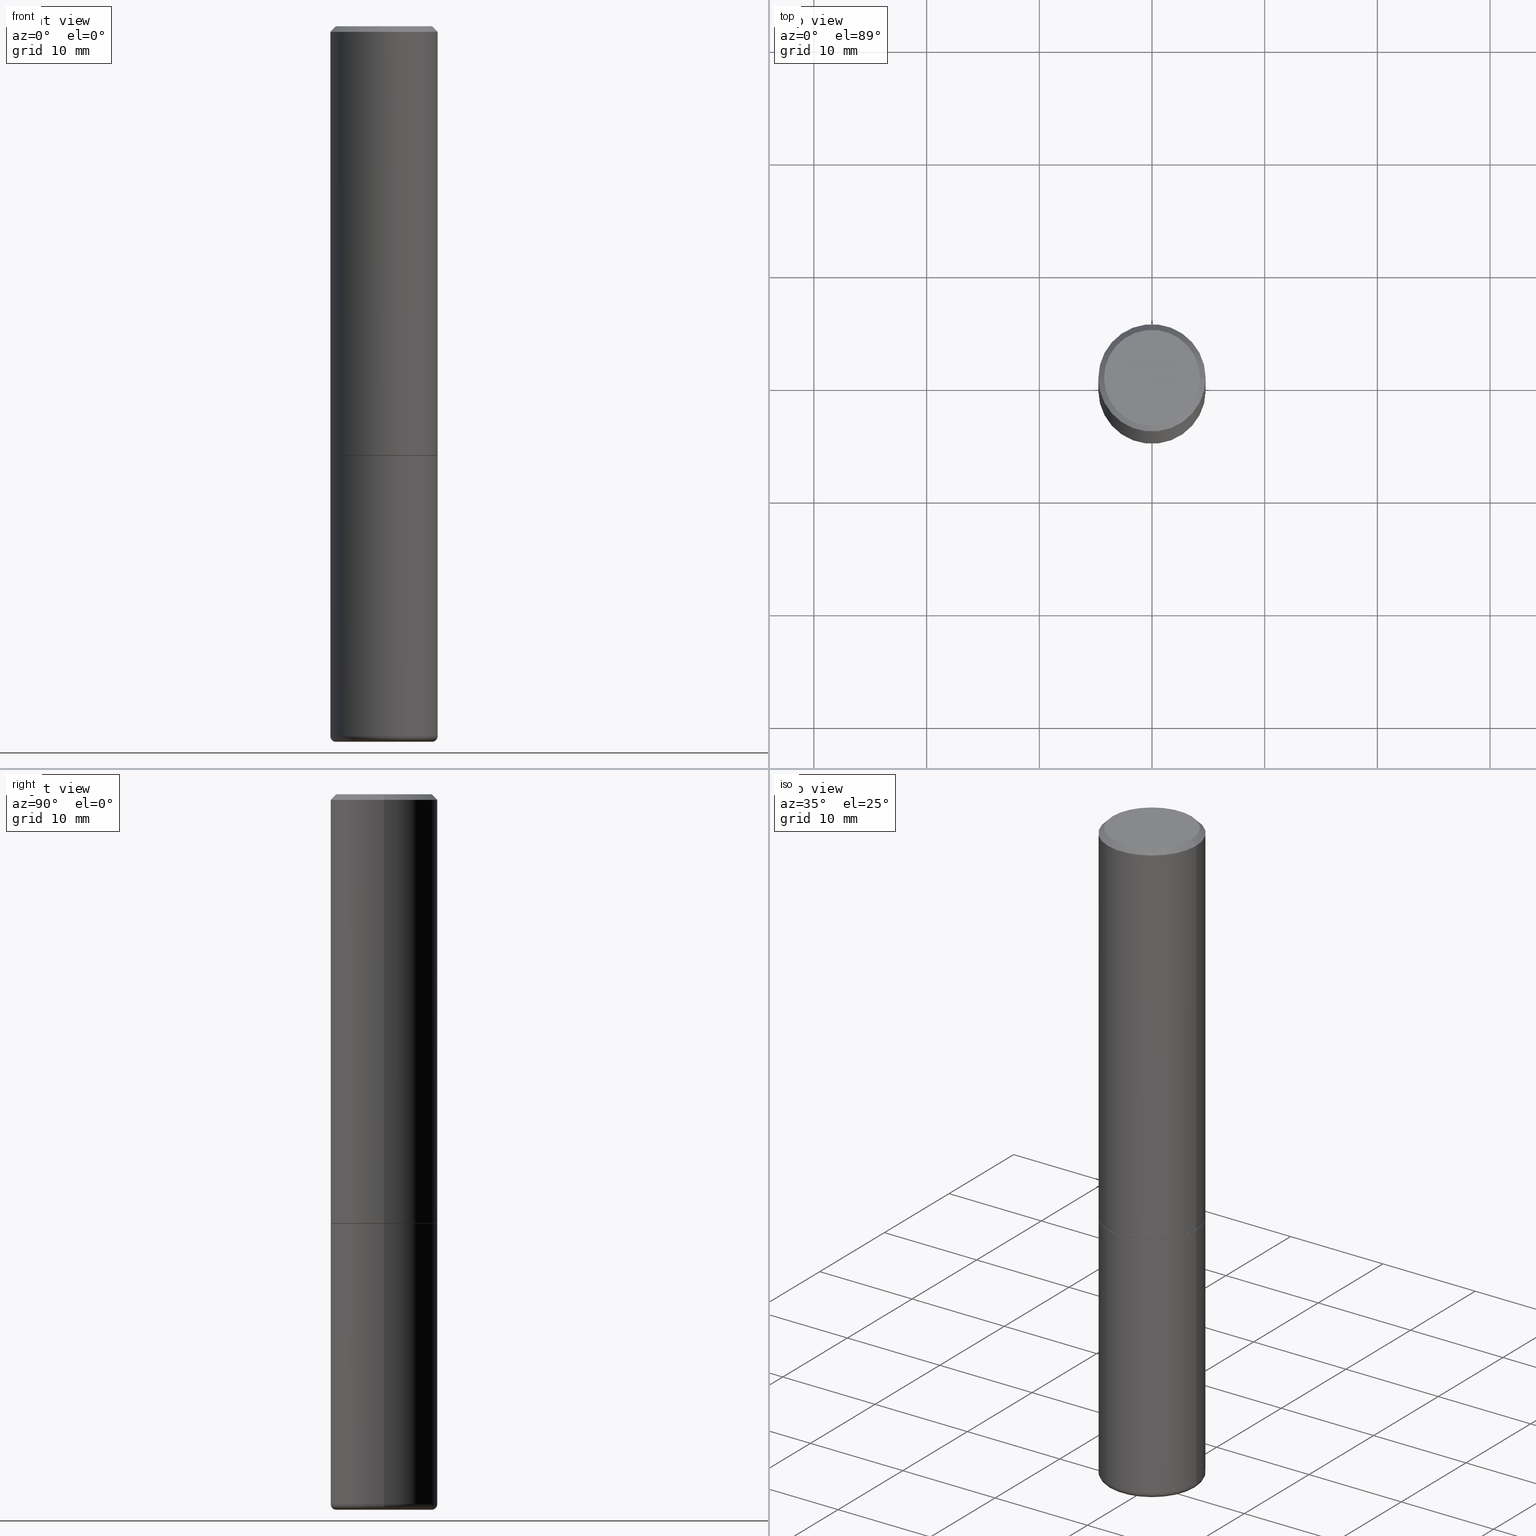
[diagram: canonical four-view strip — front | top / right | iso, engineering-drawing reading convention]
A machine part, canonical four-view strip (front | top / right | iso — engineering-drawing reading convention). The complete STEP part file that produces these views, byte-faithful:
ISO-10303-21;
HEADER;
FILE_DESCRIPTION (( 'STEP AP203' ),
    '1' );
FILE_NAME ('34300.STEP',
    '2022-11-02T20:14:37',
    ( '' ),
    ( '' ),
    'SwSTEP 2.0',
    'SolidWorks 2022',
    '' );
FILE_SCHEMA (( 'CONFIG_CONTROL_DESIGN' ));
ENDSEC;

DATA;
#1 = CC_DESIGN_PERSON_AND_ORGANIZATION_ASSIGNMENT ( #313, #52, ( #324 ) ) ;
#2 = AXIS2_PLACEMENT_3D ( 'NONE', #119, #458, #120 ) ;
#3 = CIRCLE ( 'NONE', #235, 0.1674999999999994549 ) ;
#4 = DIRECTION ( 'NONE',  ( 2.445468806185136597E-29, -3.491481338843145583E-15, -1.000000000000000000 ) ) ;
#5 = PERSON_AND_ORGANIZATION_ROLE ( 'design_supplier' ) ;
#6 = DIRECTION ( 'NONE',  ( 1.000000000000000000, -6.982962677686266711E-15, 0.000000000000000000 ) ) ;
#7 = ORIENTED_EDGE ( 'NONE', *, *, #92, .F. ) ;
#8 = AXIS2_PLACEMENT_3D ( 'NONE', #446, #450, #261 ) ;
#9 = AXIS2_PLACEMENT_3D ( 'NONE', #308, #303, #462 ) ;
#10 = DATE_AND_TIME ( #278, #112 ) ;
#11 = PERSON_AND_ORGANIZATION_ROLE ( 'creator' ) ;
#12 = EDGE_CURVE ( 'NONE', #143, #432, #210, .T. ) ;
#13 = EDGE_CURVE ( 'NONE', #468, #434, #348, .T. ) ;
#14 = EDGE_CURVE ( 'NONE', #434, #125, #161, .T. ) ;
#15 = AXIS2_PLACEMENT_3D ( 'NONE', #326, #397, #435 ) ;
#16 = ORIENTED_EDGE ( 'NONE', *, *, #364, .T. ) ;
#17 = DESIGN_CONTEXT ( 'detailed design', #248, 'design' ) ;
#18 = DIRECTION ( 'NONE',  ( 1.000000000000000000, -6.982962677686266711E-15, 0.000000000000000000 ) ) ;
#19 = ORIENTED_EDGE ( 'NONE', *, *, #211, .T. ) ;
#20 = CARTESIAN_POINT ( 'NONE',  ( 6.064764501658314522E-29, -8.658876379229219650E-15, -2.480000761538716958 ) ) ;
#21 = CARTESIAN_POINT ( 'NONE',  ( -0.1673254692900328078, -7.433196564835037349E-15, -2.500000000000000000 ) ) ;
#22 = AXIS2_PLACEMENT_3D ( 'NONE', #82, #43, #310 ) ;
#23 = CIRCLE ( 'NONE', #440, 0.1864999999999996383 ) ;
#24 = LINE ( 'NONE', #149, #365 ) ;
#25 = ORIENTED_EDGE ( 'NONE', *, *, #152, .F. ) ;
#26 = DIRECTION ( 'NONE',  ( -2.445468806185136597E-29, 3.491481338843145583E-15, 1.000000000000000000 ) ) ;
#27 = CARTESIAN_POINT ( 'NONE',  ( 6.113245216480286544E-29, -8.728093991274226772E-15, -2.499825473552769850 ) ) ;
#28 = ORIENTED_EDGE ( 'NONE', *, *, #55, .F. ) ;
#29 = CARTESIAN_POINT ( 'NONE',  ( 0.000000000000000000, 0.000000000000000000, 0.000000000000000000 ) ) ;
#30 = EDGE_CURVE ( 'NONE', #411, #468, #170, .T. ) ;
#31 = CARTESIAN_POINT ( 'NONE',  ( 1.309305502066208929E-15, 0.1874999999999944211, -1.500000000000000888 ) ) ;
#32 = AXIS2_PLACEMENT_3D ( 'NONE', #474, #141, #102 ) ;
#33 = CONICAL_SURFACE ( 'NONE', #471, 0.1874999999999995004, 0.7853981633974471688 ) ;
#34 = DIRECTION ( 'NONE',  ( -2.445468806185136597E-29, 3.491481338843145583E-15, 1.000000000000000000 ) ) ;
#35 = EDGE_LOOP ( 'NONE', ( #153, #288 ) ) ;
#36 = DIRECTION ( 'NONE',  ( 1.000000000000000000, -6.982962677686266711E-15, 0.000000000000000000 ) ) ;
#37 = CARTESIAN_POINT ( 'NONE',  ( 3.665757740471520413E-29, -5.233730526925875958E-15, -1.499000000000000332 ) ) ;
#38 = APPROVAL ( #289, 'UNSPECIFIED' ) ;
#39 = CARTESIAN_POINT ( 'NONE',  ( 0.1673254692900328078, -9.897130854186503559E-15, -2.500000000000000000 ) ) ;
#40 = DIRECTION ( 'NONE',  ( 1.000000000000000000, -6.982962677686265133E-15, 4.875370901645456883E-29 ) ) ;
#41 = CONICAL_SURFACE ( 'NONE', #212, 0.1473267192900327982, 1.535889741755007032 ) ;
#42 = PERSON_AND_ORGANIZATION ( #189, #318 ) ;
#43 = DIRECTION ( 'NONE',  ( 7.105427357601001859E-15, 1.000000000000000000, -3.491481338843145583E-15 ) ) ;
#44 = DIRECTION ( 'NONE',  ( -2.445468806185136597E-29, 3.491481338843145583E-15, 1.000000000000000000 ) ) ;
#45 = MECHANICAL_CONTEXT ( 'NONE', #442, 'mechanical' ) ;
#46 = APPROVAL_ROLE ( '' ) ;
#47 = AXIS2_PLACEMENT_3D ( 'NONE', #31, #481, #142 ) ;
#48 = VECTOR ( 'NONE', #83, 39.37007874015748143 ) ;
#49 = CC_DESIGN_SECURITY_CLASSIFICATION ( #324, ( #111 ) ) ;
#50 = DIRECTION ( 'NONE',  ( 1.000000000000000000, -6.982962677686265133E-15, 4.875370901645456883E-29 ) ) ;
#51 = CC_DESIGN_PERSON_AND_ORGANIZATION_ASSIGNMENT ( #201, #172, ( #111 ) ) ;
#52 = PERSON_AND_ORGANIZATION_ROLE ( 'classification_officer' ) ;
#53 = ADVANCED_FACE ( 'NONE', ( #428 ), #449, .F. ) ;
#54 = DIRECTION ( 'NONE',  ( -1.000000000000000000, 6.982962677686267499E-15, 0.000000000000000000 ) ) ;
#55 = EDGE_CURVE ( 'NONE', #429, #125, #59, .T. ) ;
#56 = VECTOR ( 'NONE', #414, 39.37007874015748143 ) ;
#57 = DIRECTION ( 'NONE',  ( -2.445468806185136597E-29, 3.491481338843145583E-15, 1.000000000000000000 ) ) ;
#58 = VERTEX_POINT ( 'NONE', #75 ) ;
#59 = LINE ( 'NONE', #424, #86 ) ;
#60 = FACE_OUTER_BOUND ( 'NONE', #320, .T. ) ;
#61 = EDGE_LOOP ( 'NONE', ( #270, #165, #94 ) ) ;
#62 = DIRECTION ( 'NONE',  ( 1.000000000000000000, -6.982962677686265922E-15, 0.000000000000000000 ) ) ;
#63 = MANIFOLD_SOLID_BREP ( 'Body-Move/Copy2[1]', #198 ) ;
#64 = FACE_OUTER_BOUND ( 'NONE', #159, .T. ) ;
#65 = ORIENTED_EDGE ( 'NONE', *, *, #232, .T. ) ;
#66 = ORIENTED_EDGE ( 'NONE', *, *, #71, .F. ) ;
#67 = CC_DESIGN_PERSON_AND_ORGANIZATION_ASSIGNMENT ( #467, #5, ( #111 ) ) ;
#68 = CC_DESIGN_APPROVAL ( #183, ( #111 ) ) ;
#69 = DIRECTION ( 'NONE',  ( 1.000000000000000000, -6.982962677686266711E-15, 4.876176775795935232E-29 ) ) ;
#70 = ORIENTED_EDGE ( 'NONE', *, *, #127, .F. ) ;
#71 = EDGE_CURVE ( 'NONE', #445, #432, #375, .T. ) ;
#72 = CARTESIAN_POINT ( 'NONE',  ( 1.169646248512445651E-15, 0.1674999999999994549, -6.040314304616767177E-16 ) ) ;
#73 = FACE_OUTER_BOUND ( 'NONE', #246, .T. ) ;
#74 = EDGE_LOOP ( 'NONE', ( #171, #294, #192, #155 ) ) ;
#75 = CARTESIAN_POINT ( 'NONE',  ( -0.1674999999999994549, 1.204561061900876905E-15, -3.841661241091200612E-17 ) ) ;
#76 = CARTESIAN_POINT ( 'NONE',  ( 0.1674999999999994549, -1.252653207992875133E-15, -3.841661241089523050E-17 ) ) ;
#77 = DIMENSIONAL_EXPONENTS ( 1.000000000000000000, 0.000000000000000000, 0.000000000000000000, 0.000000000000000000, 0.000000000000000000, 0.000000000000000000, 0.000000000000000000 ) ;
#78 = AXIS2_PLACEMENT_3D ( 'NONE', #29, #486, #199 ) ;
#79 = FACE_OUTER_BOUND ( 'NONE', #484, .T. ) ;
#80 = EDGE_LOOP ( 'NONE', ( #223, #447, #238, #284 ) ) ;
#81 = DIRECTION ( 'NONE',  ( -2.445468806185136597E-29, 3.491481338843145583E-15, 1.000000000000000000 ) ) ;
#82 = CARTESIAN_POINT ( 'NONE',  ( -0.1675000000000001488, -7.468717296831050387E-15, -2.480000761538716958 ) ) ;
#83 = DIRECTION ( 'NONE',  ( -2.445468806185136877E-29, 3.491481338843145188E-15, 1.000000000000000000 ) ) ;
#84 = CARTESIAN_POINT ( 'NONE',  ( 3.668203209277706016E-29, -5.237222008264719754E-15, -1.500000000000000444 ) ) ;
#85 = CYLINDRICAL_SURFACE ( 'NONE', #190, 0.1874999999999995837 ) ;
#86 = VECTOR ( 'NONE', #260, 39.37007874015748143 ) ;
#87 = VECTOR ( 'NONE', #395, 39.37007874015748143 ) ;
#88 = ORIENTED_EDGE ( 'NONE', *, *, #301, .F. ) ;
#89 = EDGE_CURVE ( 'NONE', #465, #234, #356, .T. ) ;
#90 = DATE_AND_TIME ( #98, #427 ) ;
#91 = DIRECTION ( 'NONE',  ( 1.000000000000000000, -6.982962677686267499E-15, 0.000000000000000000 ) ) ;
#92 = EDGE_CURVE ( 'NONE', #468, #247, #167, .T. ) ;
#93 = COORDINATED_UNIVERSAL_TIME_OFFSET ( 5, 0, .BEHIND. ) ;
#94 = ORIENTED_EDGE ( 'NONE', *, *, #331, .F. ) ;
#95 = CONICAL_SURFACE ( 'NONE', #317, 0.1864999999999996383, 0.7853981633974141952 ) ;
#96 = CIRCLE ( 'NONE', #15, 0.1673254692900328078 ) ;
#97 = CC_DESIGN_APPROVAL ( #38, ( #324 ) ) ;
#98 = CALENDAR_DATE ( 2022, 2, 11 ) ;
#99 = EDGE_LOOP ( 'NONE', ( #291, #351, #241, #217 ) ) ;
#100 = CALENDAR_DATE ( 2022, 2, 11 ) ;
#101 = ORIENTED_EDGE ( 'NONE', *, *, #282, .T. ) ;
#102 = DIRECTION ( 'NONE',  ( -1.000000000000000000, 6.982962677686265922E-15, 0.000000000000000000 ) ) ;
#103 = AXIS2_PLACEMENT_3D ( 'NONE', #84, #274, #337 ) ;
#104 = PLANE ( 'NONE',  #8 ) ;
#105 = CARTESIAN_POINT ( 'NONE',  ( 3.668203209277706016E-29, -5.237222008264719754E-15, -1.500000000000000444 ) ) ;
#106 = CARTESIAN_POINT ( 'NONE',  ( 3.668203209277706016E-29, -5.237222008264719754E-15, -1.500000000000000444 ) ) ;
#107 = ORIENTED_EDGE ( 'NONE', *, *, #89, .T. ) ;
#108 = DIRECTION ( 'NONE',  ( -2.445468806185136597E-29, 3.491481338843145583E-15, 1.000000000000000000 ) ) ;
#109 = ORIENTED_EDGE ( 'NONE', *, *, #30, .F. ) ;
#110 = EDGE_CURVE ( 'NONE', #234, #465, #249, .T. ) ;
#111 = PRODUCT_DEFINITION_FORMATION_WITH_SPECIFIED_SOURCE ( 'ANY', '', #117, .NOT_KNOWN. ) ;
#112 = LOCAL_TIME ( 16, 14, 37.00000000000000000, #350 ) ;
#113 = CARTESIAN_POINT ( 'NONE',  ( 0.1675000000000001488, -9.828522627741669639E-15, -2.480000761538716958 ) ) ;
#114 = ORIENTED_EDGE ( 'NONE', *, *, #315, .F. ) ;
#115 = FACE_OUTER_BOUND ( 'NONE', #482, .T. ) ;
#116 = CARTESIAN_POINT ( 'NONE',  ( 6.113245216480286544E-29, -8.728093991274226772E-15, -2.499825473552769850 ) ) ;
#117 = PRODUCT ( '34300', '34300', '', ( #45 ) ) ;
#118 = CC_DESIGN_PERSON_AND_ORGANIZATION_ASSIGNMENT ( #431, #11, ( #416 ) ) ;
#119 = CARTESIAN_POINT ( 'NONE',  ( 6.113672015462842613E-29, -8.728703347107864943E-15, -2.500000000000000000 ) ) ;
#120 = DIRECTION ( 'NONE',  ( 1.000000000000000000, -6.982962677686272233E-15, 0.000000000000000000 ) ) ;
#121 = CONICAL_SURFACE ( 'NONE', #32, 0.1673254692900328078, 1.562069680534943661 ) ;
#122 = LOCAL_TIME ( 16, 14, 37.00000000000000000, #314 ) ;
#123 = LINE ( 'NONE', #307, #181 ) ;
#124 = CARTESIAN_POINT ( 'NONE',  ( 9.394662729016977403E-46, -1.341308853342402453E-31, -3.841661241090370459E-17 ) ) ;
#125 = VERTEX_POINT ( 'NONE', #268 ) ;
#126 = DIRECTION ( 'NONE',  ( -2.445468806185136597E-29, 3.491481338843145583E-15, 1.000000000000000000 ) ) ;
#127 = EDGE_CURVE ( 'NONE', #143, #332, #280, .T. ) ;
#128 = CARTESIAN_POINT ( 'NONE',  ( 6.100663860505328508E-29, -8.710131149346820000E-15, -2.494680711148467012 ) ) ;
#129 = EDGE_CURVE ( 'NONE', #454, #411, #156, .T. ) ;
#130 = LENGTH_MEASURE_WITH_UNIT ( LENGTH_MEASURE( 0.02539999999999999897 ), #276 );
#131 = AXIS2_PLACEMENT_3D ( 'NONE', #27, #186, #479 ) ;
#132 = DIRECTION ( 'NONE',  ( -2.445468806185136597E-29, 3.491481338843145583E-15, 1.000000000000000000 ) ) ;
#133 = ORIENTED_EDGE ( 'NONE', *, *, #152, .T. ) ;
#134 = CARTESIAN_POINT ( 'NONE',  ( 3.668203209277706016E-29, -5.237222008264719754E-15, -1.500000000000000444 ) ) ;
#135 = PERSON_AND_ORGANIZATION ( #189, #318 ) ;
#136 = EDGE_LOOP ( 'NONE', ( #220, #19, #208, #262 ) ) ;
#137 = AXIS2_PLACEMENT_3D ( 'NONE', #113, #285, #290 ) ;
#138 =( NAMED_UNIT ( * ) PLANE_ANGLE_UNIT ( ) SI_UNIT ( $, .RADIAN. ) );
#139 = CC_DESIGN_DATE_AND_TIME_ASSIGNMENT ( #251, #144, ( #324 ) ) ;
#140 = ORIENTED_EDGE ( 'NONE', *, *, #370, .T. ) ;
#141 = DIRECTION ( 'NONE',  ( 2.445468806185136597E-29, -3.491481338843145583E-15, -1.000000000000000000 ) ) ;
#142 = DIRECTION ( 'NONE',  ( -1.000000000000000000, 6.982962677686265922E-15, -4.876176775795935793E-29 ) ) ;
#143 = VERTEX_POINT ( 'NONE', #21 ) ;
#144 = DATE_TIME_ROLE ( 'classification_date' ) ;
#145 = DIRECTION ( 'NONE',  ( 0.7071067811865232589, -2.468850131082003836E-15, 0.7071067811865715536 ) ) ;
#146 = AXIS2_PLACEMENT_3D ( 'NONE', #37, #126, #491 ) ;
#147 = AXIS2_PLACEMENT_3D ( 'NONE', #456, #34, #160 ) ;
#148 = CARTESIAN_POINT ( 'NONE',  ( 6.113245216480286544E-29, -8.728093991274226772E-15, -2.499825473552769850 ) ) ;
#149 = CARTESIAN_POINT ( 'NONE',  ( -0.1874999999999995837, 1.332267629550184890E-15, -9.223003294227928372E-30 ) ) ;
#150 = EDGE_CURVE ( 'NONE', #247, #125, #272, .T. ) ;
#151 = CARTESIAN_POINT ( 'NONE',  ( 0.000000000000000000, 0.000000000000000000, 0.000000000000000000 ) ) ;
#152 = EDGE_CURVE ( 'NONE', #429, #58, #470, .T. ) ;
#153 = ORIENTED_EDGE ( 'NONE', *, *, #129, .F. ) ;
#154 = LINE ( 'NONE', #399, #378 ) ;
#155 = ORIENTED_EDGE ( 'NONE', *, *, #232, .F. ) ;
#156 = CIRCLE ( 'NONE', #293, 0.1864999999999996383 ) ;
#157 = DIRECTION ( 'NONE',  ( -2.445468806185136597E-29, 3.491481338843145583E-15, 1.000000000000000000 ) ) ;
#158 = CARTESIAN_POINT ( 'NONE',  ( 6.113672015462842613E-29, -8.728703347107864943E-15, -2.500000000000000000 ) ) ;
#159 = EDGE_LOOP ( 'NONE', ( #475, #133 ) ) ;
#160 = DIRECTION ( 'NONE',  ( 1.000000000000000000, -6.982962677686265922E-15, 4.883557194083112901E-29 ) ) ;
#161 = LINE ( 'NONE', #306, #403 ) ;
#162 = AXIS2_PLACEMENT_3D ( 'NONE', #209, #132, #472 ) ;
#163 = CARTESIAN_POINT ( 'NONE',  ( 0.000000000000000000, 0.000000000000000000, 0.000000000000000000 ) ) ;
#164 = FACE_OUTER_BOUND ( 'NONE', #255, .T. ) ;
#165 = ORIENTED_EDGE ( 'NONE', *, *, #455, .T. ) ;
#166 = ADVANCED_FACE ( 'NONE', ( #73 ), #225, .F. ) ;
#167 = LINE ( 'NONE', #312, #485 ) ;
#168 = APPROVAL_DATE_TIME ( #383, #304 ) ;
#169 = CIRCLE ( 'NONE', #437, 0.1874999999999995004 ) ;
#170 = LINE ( 'NONE', #205, #466 ) ;
#171 = ORIENTED_EDGE ( 'NONE', *, *, #298, .T. ) ;
#172 = PERSON_AND_ORGANIZATION_ROLE ( 'creator' ) ;
#173 = APPROVAL_STATUS ( 'not_yet_approved' ) ;
#174 = TOROIDAL_SURFACE ( 'NONE', #147, 0.1675000000000001488, 0.01999999999999960837 ) ;
#175 = CC_DESIGN_PERSON_AND_ORGANIZATION_ASSIGNMENT ( #244, #391, ( #117 ) ) ;
#176 = FACE_OUTER_BOUND ( 'NONE', #35, .T. ) ;
#177 = ADVANCED_FACE ( 'NONE', ( #483 ), #121, .F. ) ;
#178 = CYLINDRICAL_SURFACE ( 'NONE', #461, 0.1874999999999995837 ) ;
#179 = ORIENTED_EDGE ( 'NONE', *, *, #245, .T. ) ;
#180 = DIRECTION ( 'NONE',  ( -2.445468806185136597E-29, 3.491481338843145583E-15, 1.000000000000000000 ) ) ;
#181 = VECTOR ( 'NONE', #338, 39.37007874015748854 ) ;
#182 = CARTESIAN_POINT ( 'NONE',  ( 4.890937612370308191E-31, -6.982962677686342145E-17, -0.02000000000000014613 ) ) ;
#183 = APPROVAL ( #240, 'UNSPECIFIED' ) ;
#184 = DIRECTION ( 'NONE',  ( 1.000000000000000000, -6.982962677686265922E-15, 0.000000000000000000 ) ) ;
#185 = ORIENTED_EDGE ( 'NONE', *, *, #150, .T. ) ;
#186 = DIRECTION ( 'NONE',  ( -2.445468806185136597E-29, 3.491481338843145583E-15, 1.000000000000000000 ) ) ;
#187 = ORIENTED_EDGE ( 'NONE', *, *, #263, .F. ) ;
#188 = DIRECTION ( 'NONE',  ( -1.000000000000000000, 6.982962677686263555E-15, 0.000000000000000000 ) ) ;
#189 = PERSON ( 'UNSPECIFIED', 'UNSPECIFIED', 'UNSPECIFIED', ('UNSPECIFIED'), ('UNSPECIFIED'), ('UNSPECIFIED') ) ;
#190 = AXIS2_PLACEMENT_3D ( 'NONE', #376, #81, #335 ) ;
#191 = CARTESIAN_POINT ( 'NONE',  ( 0.1864999999999996383, -6.539544547653205593E-15, -1.500000000000000444 ) ) ;
#192 = ORIENTED_EDGE ( 'NONE', *, *, #197, .F. ) ;
#193 = CYLINDRICAL_SURFACE ( 'NONE', #389, 0.1874999999999995837 ) ;
#194 = ADVANCED_FACE ( 'NONE', ( #64 ), #443, .F. ) ;
#195 = FACE_OUTER_BOUND ( 'NONE', #136, .T. ) ;
#196 = ORIENTED_EDGE ( 'NONE', *, *, #12, .T. ) ;
#197 = EDGE_CURVE ( 'NONE', #215, #332, #169, .T. ) ;
#198 = CLOSED_SHELL ( 'NONE', ( #177, #415, #433, #401, #53, #166, #457, #430, #463 ) ) ;
#199 = DIRECTION ( 'NONE',  ( 1.000000000000000000, -6.982962677686266711E-15, 4.876176775795935232E-29 ) ) ;
#200 = ADVANCED_FACE ( 'NONE', ( #286 ), #95, .T. ) ;
#201 = PERSON_AND_ORGANIZATION ( #189, #318 ) ;
#202 = COORDINATED_UNIVERSAL_TIME_OFFSET ( 5, 0, .BEHIND. ) ;
#203 = EDGE_LOOP ( 'NONE', ( #109, #179, #277, #347 ) ) ;
#204 = VECTOR ( 'NONE', #353, 39.37007874015748854 ) ;
#205 = CARTESIAN_POINT ( 'NONE',  ( -0.1864999999999996383, -3.912059806072135281E-15, -1.500000000000000444 ) ) ;
#206 = DIRECTION ( 'NONE',  ( -1.000000000000000000, 6.982962677686263555E-15, 0.000000000000000000 ) ) ;
#207 = CARTESIAN_POINT ( 'NONE',  ( 0.000000000000000000, 0.000000000000000000, 0.000000000000000000 ) ) ;
#208 = ORIENTED_EDGE ( 'NONE', *, *, #89, .F. ) ;
#209 = CARTESIAN_POINT ( 'NONE',  ( 4.890937612370308191E-31, -6.982962677686342145E-17, -0.02000000000000014613 ) ) ;
#210 = CIRCLE ( 'NONE', #2, 0.1673254692900328078 ) ;
#211 = EDGE_CURVE ( 'NONE', #332, #234, #24, .T. ) ;
#212 = AXIS2_PLACEMENT_3D ( 'NONE', #336, #4, #188 ) ;
#213 = CALENDAR_DATE ( 2022, 2, 11 ) ;
#214 = DIRECTION ( 'NONE',  ( 2.438088387897960049E-29, -3.491481338843145188E-15, -1.000000000000000000 ) ) ;
#215 = VERTEX_POINT ( 'NONE', #480 ) ;
#216 = CARTESIAN_POINT ( 'NONE',  ( 0.1473267192900327982, -9.738828653981744627E-15, -2.499825473552769850 ) ) ;
#217 = ORIENTED_EDGE ( 'NONE', *, *, #110, .F. ) ;
#218 = DIRECTION ( 'NONE',  ( 2.445468806185136597E-29, -3.491481338843145583E-15, -1.000000000000000000 ) ) ;
#219 = CARTESIAN_POINT ( 'NONE',  ( 3.668203209277706016E-29, -5.237222008264719754E-15, -1.500000000000000444 ) ) ;
#220 = ORIENTED_EDGE ( 'NONE', *, *, #197, .T. ) ;
#221 = CC_DESIGN_APPROVAL ( #304, ( #416 ) ) ;
#222 = CARTESIAN_POINT ( 'NONE',  ( 4.890937612370308191E-31, -6.982962677686342145E-17, -0.02000000000000014613 ) ) ;
#223 = ORIENTED_EDGE ( 'NONE', *, *, #301, .T. ) ;
#224 = CARTESIAN_POINT ( 'NONE',  ( -0.1473267192900327982, -7.699317009045966994E-15, -2.499825473552769850 ) ) ;
#225 = PLANE ( 'NONE',  #47 ) ;
#226 = EDGE_LOOP ( 'NONE', ( #355, #361, #88, #114 ) ) ;
#227 = CARTESIAN_POINT ( 'NONE',  ( -0.1473267192900327982, -7.699317009045966994E-15, -2.499825473552769850 ) ) ;
#228 =( GEOMETRIC_REPRESENTATION_CONTEXT ( 3 ) GLOBAL_UNCERTAINTY_ASSIGNED_CONTEXT ( ( #438 ) ) GLOBAL_UNIT_ASSIGNED_CONTEXT ( ( #469, #138, #352 ) ) REPRESENTATION_CONTEXT ( 'NONE', 'WORKASPACE' ) );
#229 = CARTESIAN_POINT ( 'NONE',  ( 4.890937612370308191E-31, -6.982962677686342145E-17, -0.02000000000000014613 ) ) ;
#230 = ADVANCED_FACE ( 'NONE', ( #176 ), #104, .F. ) ;
#231 = DIRECTION ( 'NONE',  ( -2.445468806185136597E-29, 3.491481338843145583E-15, 1.000000000000000000 ) ) ;
#232 = EDGE_CURVE ( 'NONE', #432, #215, #394, .T. ) ;
#233 = FACE_OUTER_BOUND ( 'NONE', #74, .T. ) ;
#234 = VERTEX_POINT ( 'NONE', #252 ) ;
#235 = AXIS2_PLACEMENT_3D ( 'NONE', #124, #264, #40 ) ;
#236 = FACE_OUTER_BOUND ( 'NONE', #80, .T. ) ;
#237 = APPLICATION_PROTOCOL_DEFINITION ( 'international standard', 'config_control_design', 1994, #248 ) ;
#238 = ORIENTED_EDGE ( 'NONE', *, *, #487, .F. ) ;
#239 = CARTESIAN_POINT ( 'NONE',  ( 9.394662729016977403E-46, -1.341308853342402453E-31, -3.841661241090370459E-17 ) ) ;
#240 = APPROVAL_STATUS ( 'not_yet_approved' ) ;
#241 = ORIENTED_EDGE ( 'NONE', *, *, #344, .T. ) ;
#242 = VECTOR ( 'NONE', #254, 39.37007874015748143 ) ;
#243 = LOCAL_TIME ( 16, 14, 37.00000000000000000, #448 ) ;
#244 = PERSON_AND_ORGANIZATION ( #189, #318 ) ;
#245 = EDGE_CURVE ( 'NONE', #411, #454, #23, .T. ) ;
#246 = EDGE_LOOP ( 'NONE', ( #107, #436 ) ) ;
#247 = VERTEX_POINT ( 'NONE', #407 ) ;
#248 = APPLICATION_CONTEXT ( 'configuration controlled 3d designs of mechanical parts and assemblies' ) ;
#249 = CIRCLE ( 'NONE', #103, 0.1874999999999996392 ) ;
#250 = CARTESIAN_POINT ( 'NONE',  ( -0.1874999999999995004, 1.239475875289308357E-15, -0.02000000000000014613 ) ) ;
#251 = DATE_AND_TIME ( #100, #452 ) ;
#252 = CARTESIAN_POINT ( 'NONE',  ( -0.1874999999999996392, -5.615781564196784615E-15, -1.500000000000000444 ) ) ;
#253 = APPROVAL_ROLE ( '' ) ;
#254 = DIRECTION ( 'NONE',  ( 0.9993908270190955401, -6.978169709227550954E-15, -0.03489949670250396679 ) ) ;
#255 = EDGE_LOOP ( 'NONE', ( #70, #196, #65, #372 ) ) ;
#256 = LINE ( 'NONE', #250, #87 ) ;
#257 = AXIS2_PLACEMENT_3D ( 'NONE', #72, #214, #287 ) ;
#258 = ORIENTED_EDGE ( 'NONE', *, *, #55, .T. ) ;
#259 = CIRCLE ( 'NONE', #131, 0.1473267192900327982 ) ;
#260 = DIRECTION ( 'NONE',  ( 0.7071067811865466846, -7.319954787623252890E-15, -0.7071067811865483499 ) ) ;
#261 = DIRECTION ( 'NONE',  ( 1.000000000000000000, -6.982962677686265922E-15, 4.876176775795935793E-29 ) ) ;
#262 = ORIENTED_EDGE ( 'NONE', *, *, #344, .F. ) ;
#263 = EDGE_CURVE ( 'NONE', #58, #247, #256, .T. ) ;
#264 = DIRECTION ( 'NONE',  ( -2.445468806185136597E-29, 3.491481338843145583E-15, 1.000000000000000000 ) ) ;
#265 = CARTESIAN_POINT ( 'NONE',  ( 0.1874999999999996392, -6.546527510330891607E-15, -1.500000000000000444 ) ) ;
#266 = CARTESIAN_POINT ( 'NONE',  ( 0.1473267192900327982, -9.738828653981744627E-15, -2.499825473552769850 ) ) ;
#267 = VERTEX_POINT ( 'NONE', #224 ) ;
#268 = CARTESIAN_POINT ( 'NONE',  ( 0.1874999999999995004, -1.356173001359022113E-15, -0.02000000000000014613 ) ) ;
#269 = FACE_OUTER_BOUND ( 'NONE', #99, .T. ) ;
#270 = ORIENTED_EDGE ( 'NONE', *, *, #282, .F. ) ;
#271 = FACE_OUTER_BOUND ( 'NONE', #226, .T. ) ;
#272 = CIRCLE ( 'NONE', #477, 0.1874999999999995004 ) ;
#273 = CIRCLE ( 'NONE', #358, 0.1874999999999995004 ) ;
#274 = DIRECTION ( 'NONE',  ( -2.445468806185136597E-29, 3.491481338843145583E-15, 1.000000000000000000 ) ) ;
#275 = DIRECTION ( 'NONE',  ( -2.445468806185136877E-29, 3.491481338843145188E-15, 1.000000000000000000 ) ) ;
#276 =( LENGTH_UNIT ( ) NAMED_UNIT ( * ) SI_UNIT ( $, .METRE. ) );
#277 = ORIENTED_EDGE ( 'NONE', *, *, #315, .T. ) ;
#278 = CALENDAR_DATE ( 2022, 2, 11 ) ;
#279 = DIRECTION ( 'NONE',  ( 0.000000000000000000, 0.000000000000000000, 1.000000000000000000 ) ) ;
#280 = CIRCLE ( 'NONE', #22, 0.01999999999999961531 ) ;
#281 = AXIS2_PLACEMENT_3D ( 'NONE', #379, #490, #341 ) ;
#282 = EDGE_CURVE ( 'NONE', #453, #445, #360, .T. ) ;
#283 = DIRECTION ( 'NONE',  ( 1.000000000000000000, 0.000000000000000000, 0.000000000000000000 ) ) ;
#284 = ORIENTED_EDGE ( 'NONE', *, *, #14, .F. ) ;
#285 = DIRECTION ( 'NONE',  ( -6.982962677686266711E-15, -1.000000000000000000, 3.491481338843145583E-15 ) ) ;
#286 = FACE_OUTER_BOUND ( 'NONE', #203, .T. ) ;
#287 = DIRECTION ( 'NONE',  ( -1.000000000000000000, 6.982962677686265922E-15, -4.876176775795935793E-29 ) ) ;
#288 = ORIENTED_EDGE ( 'NONE', *, *, #245, .F. ) ;
#289 = APPROVAL_STATUS ( 'not_yet_approved' ) ;
#290 = DIRECTION ( 'NONE',  ( 1.000000000000000000, -6.982962677686273021E-15, 0.000000000000000000 ) ) ;
#291 = ORIENTED_EDGE ( 'NONE', *, *, #211, .F. ) ;
#292 = CARTESIAN_POINT ( 'NONE',  ( 3.665757740471520413E-29, -5.233730526925875958E-15, -1.499000000000000332 ) ) ;
#293 = AXIS2_PLACEMENT_3D ( 'NONE', #105, #26, #62 ) ;
#294 = ORIENTED_EDGE ( 'NONE', *, *, #127, .T. ) ;
#295 = ADVANCED_BREP_SHAPE_REPRESENTATION ( '34300', ( #63, #387, #305 ), #228 ) ;
#296 = AXIS2_PLACEMENT_3D ( 'NONE', #116, #157, #381 ) ;
#297 = APPROVAL_PERSON_ORGANIZATION ( #362, #38, #253 ) ;
#298 = EDGE_CURVE ( 'NONE', #432, #143, #96, .T. ) ;
#299 = CARTESIAN_POINT ( 'NONE',  ( -0.1864999999999996383, -3.906761351723912879E-15, -1.500000000000000444 ) ) ;
#300 = EDGE_LOOP ( 'NONE', ( #28, #444, #329, #185 ) ) ;
#301 = EDGE_CURVE ( 'NONE', #434, #468, #405, .T. ) ;
#302 = DIRECTION ( 'NONE',  ( -1.000000000000000000, 6.982962677686265922E-15, 0.000000000000000000 ) ) ;
#303 = DIRECTION ( 'NONE',  ( -2.445468806185136597E-29, 3.491481338843145583E-15, 1.000000000000000000 ) ) ;
#304 = APPROVAL ( #173, 'UNSPECIFIED' ) ;
#305 = AXIS2_PLACEMENT_3D ( 'NONE', #207, #279, #283 ) ;
#306 = CARTESIAN_POINT ( 'NONE',  ( 0.1874999999999995837, -1.309305502066172050E-15, 9.142831454617358592E-30 ) ) ;
#307 = CARTESIAN_POINT ( 'NONE',  ( -0.1673254692900328078, -7.560275840029226326E-15, -2.500000000000000000 ) ) ;
#308 = CARTESIAN_POINT ( 'NONE',  ( 6.064764501658314522E-29, -8.658876379229219650E-15, -2.480000761538716958 ) ) ;
#309 = ORIENTED_EDGE ( 'NONE', *, *, #364, .F. ) ;
#310 = DIRECTION ( 'NONE',  ( -1.000000000000000000, 7.105427357601014480E-15, 0.000000000000000000 ) ) ;
#311 = CIRCLE ( 'NONE', #162, 0.1874999999999995004 ) ;
#312 = CARTESIAN_POINT ( 'NONE',  ( -0.1874999999999995837, 1.332267629550184890E-15, -9.223003294227928372E-30 ) ) ;
#313 = PERSON_AND_ORGANIZATION ( #189, #318 ) ;
#314 = COORDINATED_UNIVERSAL_TIME_OFFSET ( 5, 0, .BEHIND. ) ;
#315 = EDGE_CURVE ( 'NONE', #454, #434, #154, .T. ) ;
#316 = DIRECTION ( 'NONE',  ( 2.445468806185136597E-29, -3.491481338843145583E-15, -1.000000000000000000 ) ) ;
#317 = AXIS2_PLACEMENT_3D ( 'NONE', #106, #108, #319 ) ;
#318 = ORGANIZATION ( 'UNSPECIFIED', 'UNSPECIFIED', '' ) ;
#319 = DIRECTION ( 'NONE',  ( 1.000000000000000000, -6.982962677686265922E-15, 0.000000000000000000 ) ) ;
#320 = EDGE_LOOP ( 'NONE', ( #7, #418, #368, #400 ) ) ;
#321 = CARTESIAN_POINT ( 'NONE',  ( -0.1874999999999995004, -5.615781564196785403E-15, -2.480000761538716958 ) ) ;
#322 = DIRECTION ( 'NONE',  ( 2.445468806185136597E-29, -3.491481338843145583E-15, -1.000000000000000000 ) ) ;
#323 = APPROVAL_PERSON_ORGANIZATION ( #135, #304, #342 ) ;
#324 = SECURITY_CLASSIFICATION ( '', '', #390 ) ;
#325 = DIRECTION ( 'NONE',  ( -2.445468806185136597E-29, 3.491481338843145583E-15, 1.000000000000000000 ) ) ;
#326 = CARTESIAN_POINT ( 'NONE',  ( 6.113672015462842613E-29, -8.728703347107864943E-15, -2.500000000000000000 ) ) ;
#327 = ADVANCED_FACE ( 'NONE', ( #60 ), #178, .T. ) ;
#328 = ADVANCED_FACE ( 'NONE', ( #363 ), #422, .T. ) ;
#329 = ORIENTED_EDGE ( 'NONE', *, *, #263, .T. ) ;
#330 = DIRECTION ( 'NONE',  ( 1.000000000000000000, -6.982962677686266711E-15, 0.000000000000000000 ) ) ;
#331 = EDGE_CURVE ( 'NONE', #445, #267, #259, .T. ) ;
#332 = VERTEX_POINT ( 'NONE', #321 ) ;
#333 = CARTESIAN_POINT ( 'NONE',  ( 6.064764501658314522E-29, -8.658876379229219650E-15, -2.480000761538716958 ) ) ;
#334 = AXIS2_PLACEMENT_3D ( 'NONE', #222, #322, #371 ) ;
#335 = DIRECTION ( 'NONE',  ( 1.000000000000000000, -6.982962677686266711E-15, 4.876176775795935232E-29 ) ) ;
#336 = CARTESIAN_POINT ( 'NONE',  ( 6.113245216480286544E-29, -8.728093991274226772E-15, -2.499825473552769850 ) ) ;
#337 = DIRECTION ( 'NONE',  ( 1.000000000000000000, -6.982962677686266711E-15, 0.000000000000000000 ) ) ;
#338 = DIRECTION ( 'NONE',  ( -0.9999619230641714207, 6.952228252019235511E-15, -0.008726535498355246501 ) ) ;
#339 = ORIENTED_EDGE ( 'NONE', *, *, #12, .F. ) ;
#340 = CONICAL_SURFACE ( 'NONE', #478, 0.1673254692900328078, 1.562069680534943661 ) ;
#341 = DIRECTION ( 'NONE',  ( 1.000000000000000000, -6.982962677686265922E-15, 0.000000000000000000 ) ) ;
#342 = APPROVAL_ROLE ( '' ) ;
#343 = PRODUCT_DEFINITION_SHAPE ( 'NONE', 'NONE',  #416 ) ;
#344 = EDGE_CURVE ( 'NONE', #215, #465, #476, .T. ) ;
#345 = APPLICATION_PROTOCOL_DEFINITION ( 'international standard', 'config_control_design', 1994, #442 ) ;
#346 = DIRECTION ( 'NONE',  ( -2.445468806185136877E-29, 3.491481338843145188E-15, 1.000000000000000000 ) ) ;
#347 = ORIENTED_EDGE ( 'NONE', *, *, #13, .F. ) ;
#348 = CIRCLE ( 'NONE', #146, 0.1874999999999996392 ) ;
#349 = EDGE_CURVE ( 'NONE', #58, #429, #3, .T. ) ;
#350 = COORDINATED_UNIVERSAL_TIME_OFFSET ( 5, 0, .BEHIND. ) ;
#351 = ORIENTED_EDGE ( 'NONE', *, *, #419, .T. ) ;
#352 =( NAMED_UNIT ( * ) SI_UNIT ( $, .STERADIAN. ) SOLID_ANGLE_UNIT ( ) );
#353 = DIRECTION ( 'NONE',  ( 0.9999619230641714207, -6.890705306874777996E-15, -0.008726535498355246501 ) ) ;
#354 = CALENDAR_DATE ( 2022, 2, 11 ) ;
#355 = ORIENTED_EDGE ( 'NONE', *, *, #129, .T. ) ;
#356 = CIRCLE ( 'NONE', #460, 0.1874999999999996392 ) ;
#357 = AXIS2_PLACEMENT_3D ( 'NONE', #292, #57, #18 ) ;
#358 = AXIS2_PLACEMENT_3D ( 'NONE', #333, #231, #36 ) ;
#359 = CC_DESIGN_DATE_AND_TIME_ASSIGNMENT ( #90, #386, ( #416 ) ) ;
#360 = LINE ( 'NONE', #216, #242 ) ;
#361 = ORIENTED_EDGE ( 'NONE', *, *, #30, .T. ) ;
#362 = PERSON_AND_ORGANIZATION ( #189, #318 ) ;
#363 = FACE_OUTER_BOUND ( 'NONE', #300, .T. ) ;
#364 = EDGE_CURVE ( 'NONE', #267, #445, #451, .T. ) ;
#365 = VECTOR ( 'NONE', #373, 39.37007874015748143 ) ;
#366 = DIRECTION ( 'NONE',  ( -2.445468806185136597E-29, 3.491481338843145583E-15, 1.000000000000000000 ) ) ;
#367 = CONICAL_SURFACE ( 'NONE', #281, 0.1864999999999996383, 0.7853981633974141952 ) ;
#368 = ORIENTED_EDGE ( 'NONE', *, *, #14, .T. ) ;
#369 = ORIENTED_EDGE ( 'NONE', *, *, #370, .F. ) ;
#370 = EDGE_CURVE ( 'NONE', #267, #143, #123, .T. ) ;
#371 = DIRECTION ( 'NONE',  ( -1.000000000000000000, 6.982962677686267499E-15, 0.000000000000000000 ) ) ;
#372 = ORIENTED_EDGE ( 'NONE', *, *, #419, .F. ) ;
#373 = DIRECTION ( 'NONE',  ( -2.445468806185136877E-29, 3.491481338843145188E-15, 1.000000000000000000 ) ) ;
#374 = EDGE_LOOP ( 'NONE', ( #66, #392, #140, #385 ) ) ;
#375 = LINE ( 'NONE', #488, #204 ) ;
#376 = CARTESIAN_POINT ( 'NONE',  ( 0.000000000000000000, 0.000000000000000000, 0.000000000000000000 ) ) ;
#377 = CLOSED_SHELL ( 'NONE', ( #398, #384, #473, #328, #327, #200, #230, #194 ) ) ;
#378 = VECTOR ( 'NONE', #145, 39.37007874015748854 ) ;
#379 = CARTESIAN_POINT ( 'NONE',  ( 3.668203209277706016E-29, -5.237222008264719754E-15, -1.500000000000000444 ) ) ;
#380 = DIRECTION ( 'NONE',  ( 2.445468806185136597E-29, -3.491481338843145583E-15, -1.000000000000000000 ) ) ;
#381 = DIRECTION ( 'NONE',  ( 1.000000000000000000, -6.982962677686263555E-15, 0.000000000000000000 ) ) ;
#382 = APPROVAL_PERSON_ORGANIZATION ( #42, #183, #46 ) ;
#383 = DATE_AND_TIME ( #354, #122 ) ;
#384 = ADVANCED_FACE ( 'NONE', ( #236 ), #492, .T. ) ;
#385 = ORIENTED_EDGE ( 'NONE', *, *, #298, .F. ) ;
#386 = DATE_TIME_ROLE ( 'creation_date' ) ;
#387 = MANIFOLD_SOLID_BREP ( 'Body-Move/Copy2[2]', #377 ) ;
#388 = DIRECTION ( 'NONE',  ( -2.445468806185136597E-29, 3.491481338843145583E-15, 1.000000000000000000 ) ) ;
#389 = AXIS2_PLACEMENT_3D ( 'NONE', #163, #417, #464 ) ;
#390 = SECURITY_CLASSIFICATION_LEVEL ( 'unclassified' ) ;
#391 = PERSON_AND_ORGANIZATION_ROLE ( 'design_owner' ) ;
#392 = ORIENTED_EDGE ( 'NONE', *, *, #331, .T. ) ;
#393 = DATE_AND_TIME ( #213, #243 ) ;
#394 = CIRCLE ( 'NONE', #137, 0.01999999999999961531 ) ;
#395 = DIRECTION ( 'NONE',  ( -0.7071067811865466846, 2.468850131082247989E-15, -0.7071067811865483499 ) ) ;
#396 = ORIENTED_EDGE ( 'NONE', *, *, #455, .F. ) ;
#397 = DIRECTION ( 'NONE',  ( -2.445468806185136597E-29, 3.491481338843145583E-15, 1.000000000000000000 ) ) ;
#398 = ADVANCED_FACE ( 'NONE', ( #271 ), #367, .T. ) ;
#399 = CARTESIAN_POINT ( 'NONE',  ( 0.1864999999999996383, -6.539544547653205593E-15, -1.500000000000000444 ) ) ;
#400 = ORIENTED_EDGE ( 'NONE', *, *, #150, .F. ) ;
#401 = ADVANCED_FACE ( 'NONE', ( #115 ), #41, .F. ) ;
#402 = SHAPE_DEFINITION_REPRESENTATION ( #343, #295 ) ;
#403 = VECTOR ( 'NONE', #346, 39.37007874015748143 ) ;
#404 = DIRECTION ( 'NONE',  ( -2.445468806185136597E-29, 3.491481338843145583E-15, 1.000000000000000000 ) ) ;
#405 = CIRCLE ( 'NONE', #357, 0.1874999999999996392 ) ;
#406 = EDGE_LOOP ( 'NONE', ( #16, #423, #339, #369 ) ) ;
#407 = CARTESIAN_POINT ( 'NONE',  ( -0.1874999999999995004, 1.239475875289308357E-15, -0.02000000000000014613 ) ) ;
#408 = ORIENTED_EDGE ( 'NONE', *, *, #487, .T. ) ;
#409 = PRODUCT_RELATED_PRODUCT_CATEGORY ( 'detail', '', ( #117 ) ) ;
#410 = CARTESIAN_POINT ( 'NONE',  ( -0.1874999999999996392, -1.319512447301182766E-15, -1.499000000000000332 ) ) ;
#411 = VERTEX_POINT ( 'NONE', #299 ) ;
#412 = AXIS2_PLACEMENT_3D ( 'NONE', #148, #218, #206 ) ;
#413 = TOROIDAL_SURFACE ( 'NONE', #9, 0.1675000000000001488, 0.01999999999999960837 ) ;
#414 = DIRECTION ( 'NONE',  ( -0.9993908270190955401, 6.856857904024546215E-15, -0.03489949670250396679 ) ) ;
#415 = ADVANCED_FACE ( 'NONE', ( #233 ), #174, .T. ) ;
#416 = PRODUCT_DEFINITION ( 'UNKNOWN', '', #111, #17 ) ;
#417 = DIRECTION ( 'NONE',  ( -2.445468806185136597E-29, 3.491481338843145583E-15, 1.000000000000000000 ) ) ;
#418 = ORIENTED_EDGE ( 'NONE', *, *, #13, .T. ) ;
#419 = EDGE_CURVE ( 'NONE', #332, #215, #273, .T. ) ;
#420 = LINE ( 'NONE', #227, #56 ) ;
#421 = AXIS2_PLACEMENT_3D ( 'NONE', #239, #388, #50 ) ;
#422 = CONICAL_SURFACE ( 'NONE', #334, 0.1874999999999995004, 0.7853981633974471688 ) ;
#423 = ORIENTED_EDGE ( 'NONE', *, *, #71, .T. ) ;
#424 = CARTESIAN_POINT ( 'NONE',  ( 0.1874999999999995004, -1.356173001359022113E-15, -0.02000000000000014613 ) ) ;
#425 = APPROVAL_DATE_TIME ( #10, #183 ) ;
#426 = DIRECTION ( 'NONE',  ( -0.7071067811865232589, 7.493145998870265808E-15, 0.7071067811865715536 ) ) ;
#427 = LOCAL_TIME ( 16, 14, 37.00000000000000000, #202 ) ;
#428 = FACE_OUTER_BOUND ( 'NONE', #61, .T. ) ;
#429 = VERTEX_POINT ( 'NONE', #76 ) ;
#430 = ADVANCED_FACE ( 'NONE', ( #164 ), #413, .T. ) ;
#431 = PERSON_AND_ORGANIZATION ( #189, #318 ) ;
#432 = VERTEX_POINT ( 'NONE', #39 ) ;
#433 = ADVANCED_FACE ( 'NONE', ( #195 ), #193, .T. ) ;
#434 = VERTEX_POINT ( 'NONE', #459 ) ;
#435 = DIRECTION ( 'NONE',  ( 1.000000000000000000, -6.982962677686272233E-15, 0.000000000000000000 ) ) ;
#436 = ORIENTED_EDGE ( 'NONE', *, *, #110, .T. ) ;
#437 = AXIS2_PLACEMENT_3D ( 'NONE', #20, #180, #330 ) ;
#438 = UNCERTAINTY_MEASURE_WITH_UNIT (LENGTH_MEASURE( 1.000000000000000082E-05 ), #469, 'distance_accuracy_value', 'NONE');
#439 = APPROVAL_DATE_TIME ( #393, #38 ) ;
#440 = AXIS2_PLACEMENT_3D ( 'NONE', #219, #366, #184 ) ;
#441 = CARTESIAN_POINT ( 'NONE',  ( 0.1874999999999995837, -1.309305502066172050E-15, 9.142831454617358592E-30 ) ) ;
#442 = APPLICATION_CONTEXT ( 'configuration controlled 3d designs of mechanical parts and assemblies' ) ;
#443 = PLANE ( 'NONE',  #257 ) ;
#444 = ORIENTED_EDGE ( 'NONE', *, *, #349, .F. ) ;
#445 = VERTEX_POINT ( 'NONE', #266 ) ;
#446 = CARTESIAN_POINT ( 'NONE',  ( 3.668203209277706016E-29, -5.237222008264719754E-15, -1.500000000000000444 ) ) ;
#447 = ORIENTED_EDGE ( 'NONE', *, *, #92, .T. ) ;
#448 = COORDINATED_UNIVERSAL_TIME_OFFSET ( 5, 0, .BEHIND. ) ;
#449 = CONICAL_SURFACE ( 'NONE', #412, 0.1473267192900327982, 1.535889741755007032 ) ;
#450 = DIRECTION ( 'NONE',  ( -2.438088387897960049E-29, 3.491481338843145188E-15, 1.000000000000000000 ) ) ;
#451 = CIRCLE ( 'NONE', #296, 0.1473267192900327982 ) ;
#452 = LOCAL_TIME ( 16, 14, 37.00000000000000000, #93 ) ;
#453 = VERTEX_POINT ( 'NONE', #128 ) ;
#454 = VERTEX_POINT ( 'NONE', #191 ) ;
#455 = EDGE_CURVE ( 'NONE', #453, #267, #420, .T. ) ;
#456 = CARTESIAN_POINT ( 'NONE',  ( 6.064764501658314522E-29, -8.658876379229219650E-15, -2.480000761538716958 ) ) ;
#457 = ADVANCED_FACE ( 'NONE', ( #269 ), #85, .T. ) ;
#458 = DIRECTION ( 'NONE',  ( -2.445468806185136597E-29, 3.491481338843145583E-15, 1.000000000000000000 ) ) ;
#459 = CARTESIAN_POINT ( 'NONE',  ( 0.1874999999999996392, -6.543036028992048600E-15, -1.499000000000000332 ) ) ;
#460 = AXIS2_PLACEMENT_3D ( 'NONE', #134, #44, #6 ) ;
#461 = AXIS2_PLACEMENT_3D ( 'NONE', #151, #404, #69 ) ;
#462 = DIRECTION ( 'NONE',  ( 1.000000000000000000, -6.982962677686265922E-15, 4.883557194083112901E-29 ) ) ;
#463 = ADVANCED_FACE ( 'NONE', ( #489 ), #340, .F. ) ;
#464 = DIRECTION ( 'NONE',  ( 1.000000000000000000, -6.982962677686266711E-15, 4.876176775795935232E-29 ) ) ;
#465 = VERTEX_POINT ( 'NONE', #265 ) ;
#466 = VECTOR ( 'NONE', #426, 39.37007874015748854 ) ;
#467 = PERSON_AND_ORGANIZATION ( #189, #318 ) ;
#468 = VERTEX_POINT ( 'NONE', #410 ) ;
#469 =( CONVERSION_BASED_UNIT ( 'INCH', #130 ) LENGTH_UNIT ( ) NAMED_UNIT ( #77 ) );
#470 = CIRCLE ( 'NONE', #421, 0.1674999999999994549 ) ;
#471 = AXIS2_PLACEMENT_3D ( 'NONE', #229, #316, #54 ) ;
#472 = DIRECTION ( 'NONE',  ( 1.000000000000000000, -6.982962677686267499E-15, 0.000000000000000000 ) ) ;
#473 = ADVANCED_FACE ( 'NONE', ( #79 ), #33, .T. ) ;
#474 = CARTESIAN_POINT ( 'NONE',  ( 6.113672015462842613E-29, -8.728703347107864943E-15, -2.500000000000000000 ) ) ;
#475 = ORIENTED_EDGE ( 'NONE', *, *, #349, .T. ) ;
#476 = LINE ( 'NONE', #441, #48 ) ;
#477 = AXIS2_PLACEMENT_3D ( 'NONE', #182, #325, #91 ) ;
#478 = AXIS2_PLACEMENT_3D ( 'NONE', #158, #380, #302 ) ;
#479 = DIRECTION ( 'NONE',  ( 1.000000000000000000, -6.982962677686263555E-15, 0.000000000000000000 ) ) ;
#480 = CARTESIAN_POINT ( 'NONE',  ( 0.1874999999999995004, -9.968181881295391502E-15, -2.480000761538716958 ) ) ;
#481 = DIRECTION ( 'NONE',  ( 2.438088387897960049E-29, -3.491481338843145188E-15, -1.000000000000000000 ) ) ;
#482 = EDGE_LOOP ( 'NONE', ( #396, #101, #309 ) ) ;
#483 = FACE_OUTER_BOUND ( 'NONE', #406, .T. ) ;
#484 = EDGE_LOOP ( 'NONE', ( #25, #258, #408, #187 ) ) ;
#485 = VECTOR ( 'NONE', #275, 39.37007874015748143 ) ;
#486 = DIRECTION ( 'NONE',  ( -2.445468806185136597E-29, 3.491481338843145583E-15, 1.000000000000000000 ) ) ;
#487 = EDGE_CURVE ( 'NONE', #125, #247, #311, .T. ) ;
#488 = CARTESIAN_POINT ( 'NONE',  ( 0.1673254692900328078, -9.876639394148316975E-15, -2.500000000000000000 ) ) ;
#489 = FACE_OUTER_BOUND ( 'NONE', #374, .T. ) ;
#490 = DIRECTION ( 'NONE',  ( -2.445468806185136597E-29, 3.491481338843145583E-15, 1.000000000000000000 ) ) ;
#491 = DIRECTION ( 'NONE',  ( 1.000000000000000000, -6.982962677686266711E-15, 0.000000000000000000 ) ) ;
#492 = CYLINDRICAL_SURFACE ( 'NONE', #78, 0.1874999999999995837 ) ;
ENDSEC;
END-ISO-10303-21;
